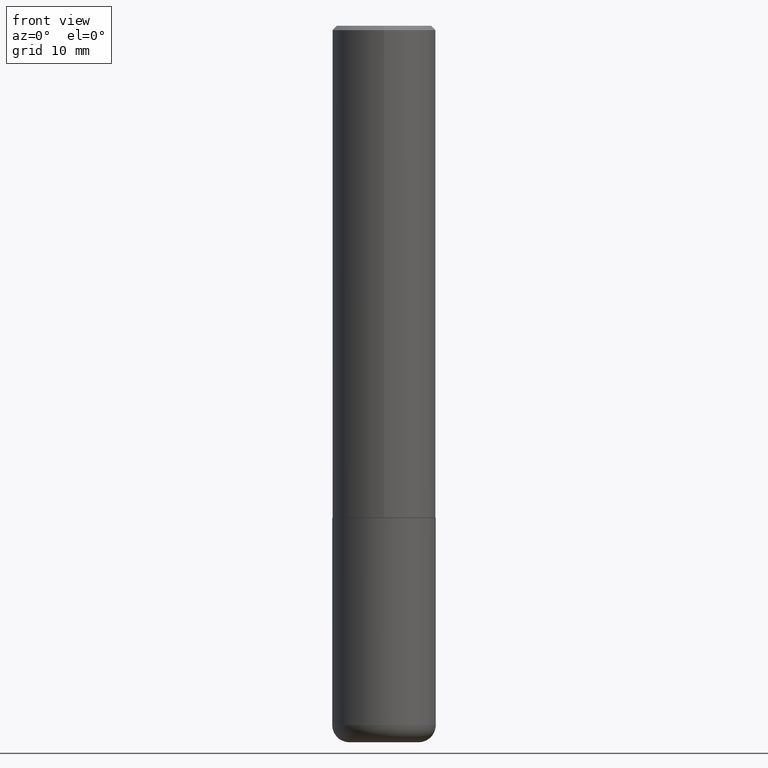
[diagram: clean part render]
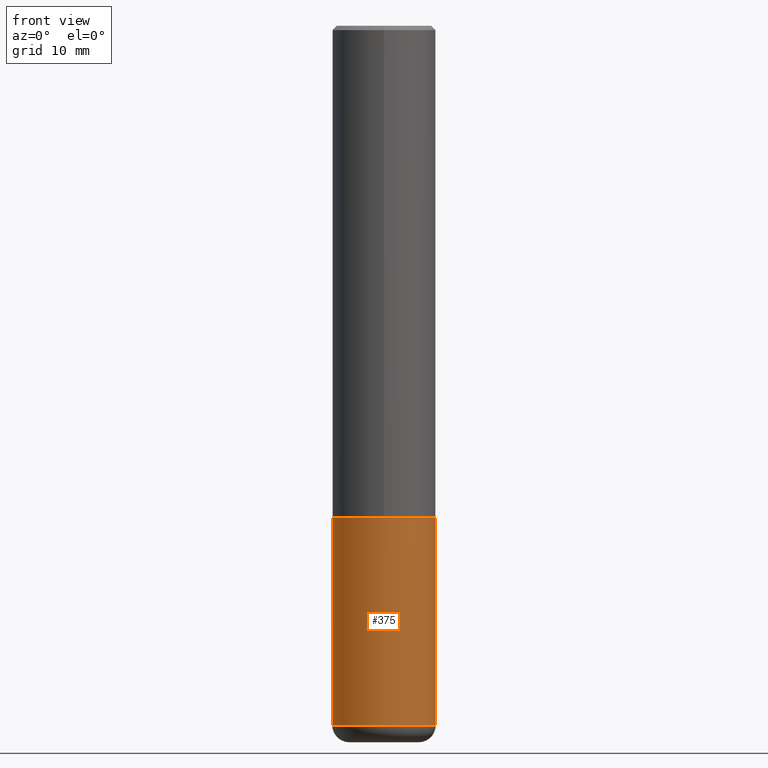
[diagram: same view with one face highlighted and labeled with its STEP entity id]
A machine part, front view. The second image highlights one B-rep face of the part: STEP entity #375.
In plain terms, the highlighted cylindrical surface (partial cylindrical patch) has radius 5.9995 mm, axis along (-0, 0, 1).
Its self-contained STEP definition (entity closure, byte-faithful):
#10 = VERTEX_POINT ( 'NONE', #325 ) ;
#20 = CIRCLE ( 'NONE', #173, 0.2361999999999999933 ) ;
#59 = DIRECTION ( 'NONE',  ( 1.000000000000000000, -6.982962677686266711E-15, 4.876176775795936353E-29 ) ) ;
#62 = CIRCLE ( 'NONE', #112, 0.2362000000000000210 ) ;
#95 = CARTESIAN_POINT ( 'NONE',  ( 0.000000000000000000, 0.000000000000000000, 0.000000000000000000 ) ) ;
#99 = ORIENTED_EDGE ( 'NONE', *, *, #384, .F. ) ;
#112 = AXIS2_PLACEMENT_3D ( 'NONE', #274, #198, #408 ) ;
#117 = CARTESIAN_POINT ( 'NONE',  ( -0.2361999999999999933, -7.806481689168991326E-15, -2.244100000000000428 ) ) ;
#119 = CARTESIAN_POINT ( 'NONE',  ( -0.2361999999999999933, 1.678301941865356591E-15, -1.161852468318208757E-29 ) ) ;
#120 = VECTOR ( 'NONE', #249, 39.37007874015748143 ) ;
#123 = FACE_OUTER_BOUND ( 'NONE', #395, .T. ) ;
#124 = VERTEX_POINT ( 'NONE', #230 ) ;
#151 = DIRECTION ( 'NONE',  ( -2.445468806185136877E-29, 3.491481338843145188E-15, 1.000000000000000000 ) ) ;
#156 = ORIENTED_EDGE ( 'NONE', *, *, #391, .T. ) ;
#173 = AXIS2_PLACEMENT_3D ( 'NONE', #174, #306, #246 ) ;
#174 = CARTESIAN_POINT ( 'NONE',  ( 5.487876547960065873E-29, -7.835233272497903917E-15, -2.244100000000000428 ) ) ;
#183 = LINE ( 'NONE', #119, #299 ) ;
#189 = AXIS2_PLACEMENT_3D ( 'NONE', #95, #251, #59 ) ;
#198 = DIRECTION ( 'NONE',  ( -2.445468806185136597E-29, 3.491481338843145583E-15, 1.000000000000000000 ) ) ;
#214 = VERTEX_POINT ( 'NONE', #117 ) ;
#230 = CARTESIAN_POINT ( 'NONE',  ( 0.2361999999999999933, -9.484609056967400443E-15, -2.244100000000000428 ) ) ;
#239 = EDGE_CURVE ( 'NONE', #214, #124, #20, .T. ) ;
#246 = DIRECTION ( 'NONE',  ( 1.000000000000000000, -6.982962677686269077E-15, 0.000000000000000000 ) ) ;
#249 = DIRECTION ( 'NONE',  ( -2.445468806185136877E-29, 3.491481338843145188E-15, 1.000000000000000000 ) ) ;
#251 = DIRECTION ( 'NONE',  ( -2.445468806185136597E-29, 3.491481338843145583E-15, 1.000000000000000000 ) ) ;
#252 = ORIENTED_EDGE ( 'NONE', *, *, #288, .T. ) ;
#256 = ORIENTED_EDGE ( 'NONE', *, *, #239, .F. ) ;
#274 = CARTESIAN_POINT ( 'NONE',  ( 7.798600022924401307E-29, -1.113433398957079310E-14, -3.189000000000000501 ) ) ;
#288 = EDGE_CURVE ( 'NONE', #410, #10, #62, .T. ) ;
#299 = VECTOR ( 'NONE', #151, 39.37007874015748143 ) ;
#306 = DIRECTION ( 'NONE',  ( -2.445468806185136597E-29, 3.491481338843145583E-15, 1.000000000000000000 ) ) ;
#318 = LINE ( 'NONE', #348, #120 ) ;
#325 = CARTESIAN_POINT ( 'NONE',  ( 0.2361999999999999933, -1.278370977404028805E-14, -3.189000000000000501 ) ) ;
#348 = CARTESIAN_POINT ( 'NONE',  ( 0.2361999999999999933, -1.649375784469496131E-15, 1.151752954443000088E-29 ) ) ;
#375 = ADVANCED_FACE ( 'NONE', ( #123 ), #382, .T. ) ;
#376 = CARTESIAN_POINT ( 'NONE',  ( -0.2361999999999999933, -9.456032047705438285E-15, -3.189000000000000501 ) ) ;
#382 = CYLINDRICAL_SURFACE ( 'NONE', #189, 0.2361999999999999933 ) ;
#384 = EDGE_CURVE ( 'NONE', #410, #214, #183, .T. ) ;
#391 = EDGE_CURVE ( 'NONE', #10, #124, #318, .T. ) ;
#395 = EDGE_LOOP ( 'NONE', ( #99, #252, #156, #256 ) ) ;
#408 = DIRECTION ( 'NONE',  ( 1.000000000000000000, -6.982962677686264344E-15, 0.000000000000000000 ) ) ;
#410 = VERTEX_POINT ( 'NONE', #376 ) ;